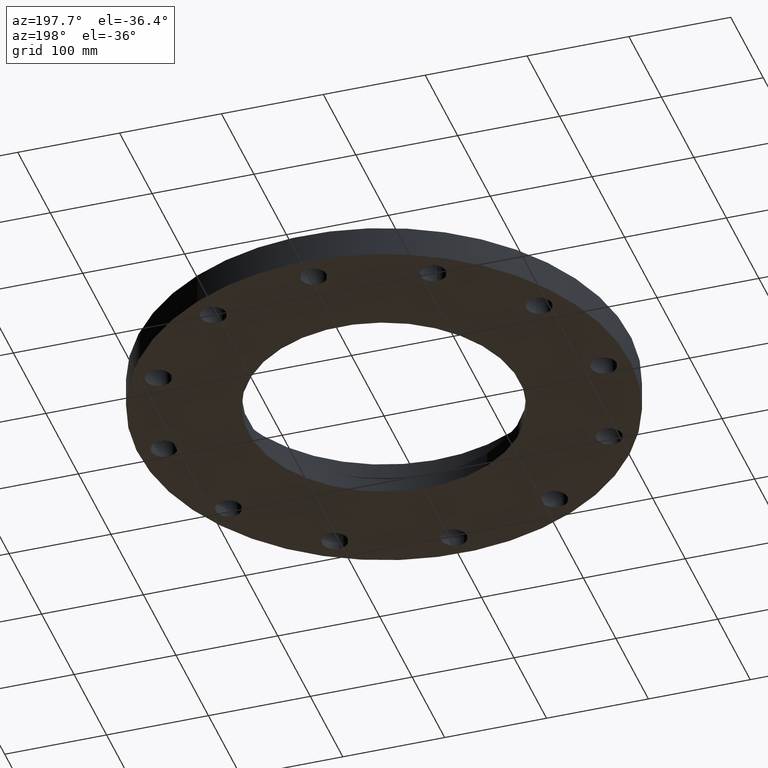
[diagram: clean part render]
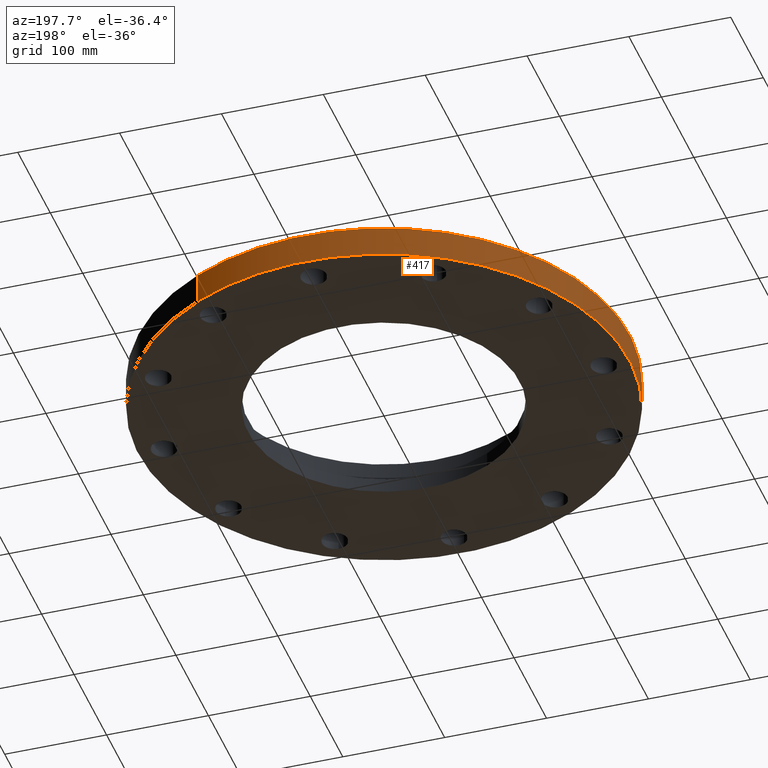
[diagram: same view with one face highlighted and labeled with its STEP entity id]
A machine part, auxiliary view. The second image highlights one B-rep face of the part: STEP entity #417.
In plain terms, the highlighted cylindrical surface (partial cylindrical patch) has radius 241.3 mm, axis along (0, 0, -1).
Its self-contained STEP definition (entity closure, byte-faithful):
#150=AXIS2_PLACEMENT_3D('Circle Axis2P3D',#148,#149,$) ;
#390=AXIS2_PLACEMENT_3D('Cylinder Axis2P3D',#387,#388,#389) ;
#401=AXIS2_PLACEMENT_3D('Circle Axis2P3D',#399,#400,$) ;
#148=CARTESIAN_POINT('Axis2P3D Location',(0.,0.,0.)) ;
#152=CARTESIAN_POINT('Vertex',(-4.55454261676,-8.33703433799,1.1189649382E-015)) ;
#154=CARTESIAN_POINT('Vertex',(4.55454261676,8.33703433799,1.1189649382E-015)) ;
#387=CARTESIAN_POINT('Axis2P3D Location',(0.,0.,1.06)) ;
#392=CARTESIAN_POINT('Line Origine',(-4.55454261676,-8.33703433799,0.595000000002)) ;
#396=CARTESIAN_POINT('Vertex',(-4.55454261676,-8.33703433799,1.19)) ;
#399=CARTESIAN_POINT('Axis2P3D Location',(0.,0.,1.19)) ;
#403=CARTESIAN_POINT('Vertex',(4.55454261676,8.33703433799,1.19)) ;
#406=CARTESIAN_POINT('Line Origine',(4.55454261676,8.33703433799,0.595000000002)) ;
#149=DIRECTION('Axis2P3D Direction',(0.,0.,-0.0393700787402)) ;
#388=DIRECTION('Axis2P3D Direction',(0.,0.,-0.0393700787402)) ;
#389=DIRECTION('Axis2P3D XDirection',(0.0188750212049,0.0345504945626,0.)) ;
#393=DIRECTION('Vector Direction',(0.,0.,-0.0393700787402)) ;
#400=DIRECTION('Axis2P3D Direction',(0.,0.,-0.0393700787402)) ;
#407=DIRECTION('Vector Direction',(0.,0.,-0.0393700787402)) ;
#394=VECTOR('Line Direction',#393,0.0393700787402) ;
#408=VECTOR('Line Direction',#407,0.0393700787402) ;
#412=ORIENTED_EDGE('',*,*,#156,.F.) ;
#413=ORIENTED_EDGE('',*,*,#398,.T.) ;
#414=ORIENTED_EDGE('',*,*,#405,.T.) ;
#415=ORIENTED_EDGE('',*,*,#410,.F.) ;
#417=ADVANCED_FACE('PartBody',(#416),#391,.T.) ;
#151=CIRCLE('generated circle',#150,9.50000000004) ;
#402=CIRCLE('generated circle',#401,9.50000000004) ;
#391=CYLINDRICAL_SURFACE('generated cylinder',#390,9.50000000004) ;
#156=EDGE_CURVE('',#153,#155,#151,.T.) ;
#398=EDGE_CURVE('',#153,#397,#395,.F.) ;
#405=EDGE_CURVE('',#397,#404,#402,.T.) ;
#410=EDGE_CURVE('',#155,#404,#409,.F.) ;
#411=EDGE_LOOP('',(#412,#413,#414,#415)) ;
#416=FACE_OUTER_BOUND('',#411,.T.) ;
#395=LINE('Line',#392,#394) ;
#409=LINE('Line',#406,#408) ;
#153=VERTEX_POINT('',#152) ;
#155=VERTEX_POINT('',#154) ;
#397=VERTEX_POINT('',#396) ;
#404=VERTEX_POINT('',#403) ;